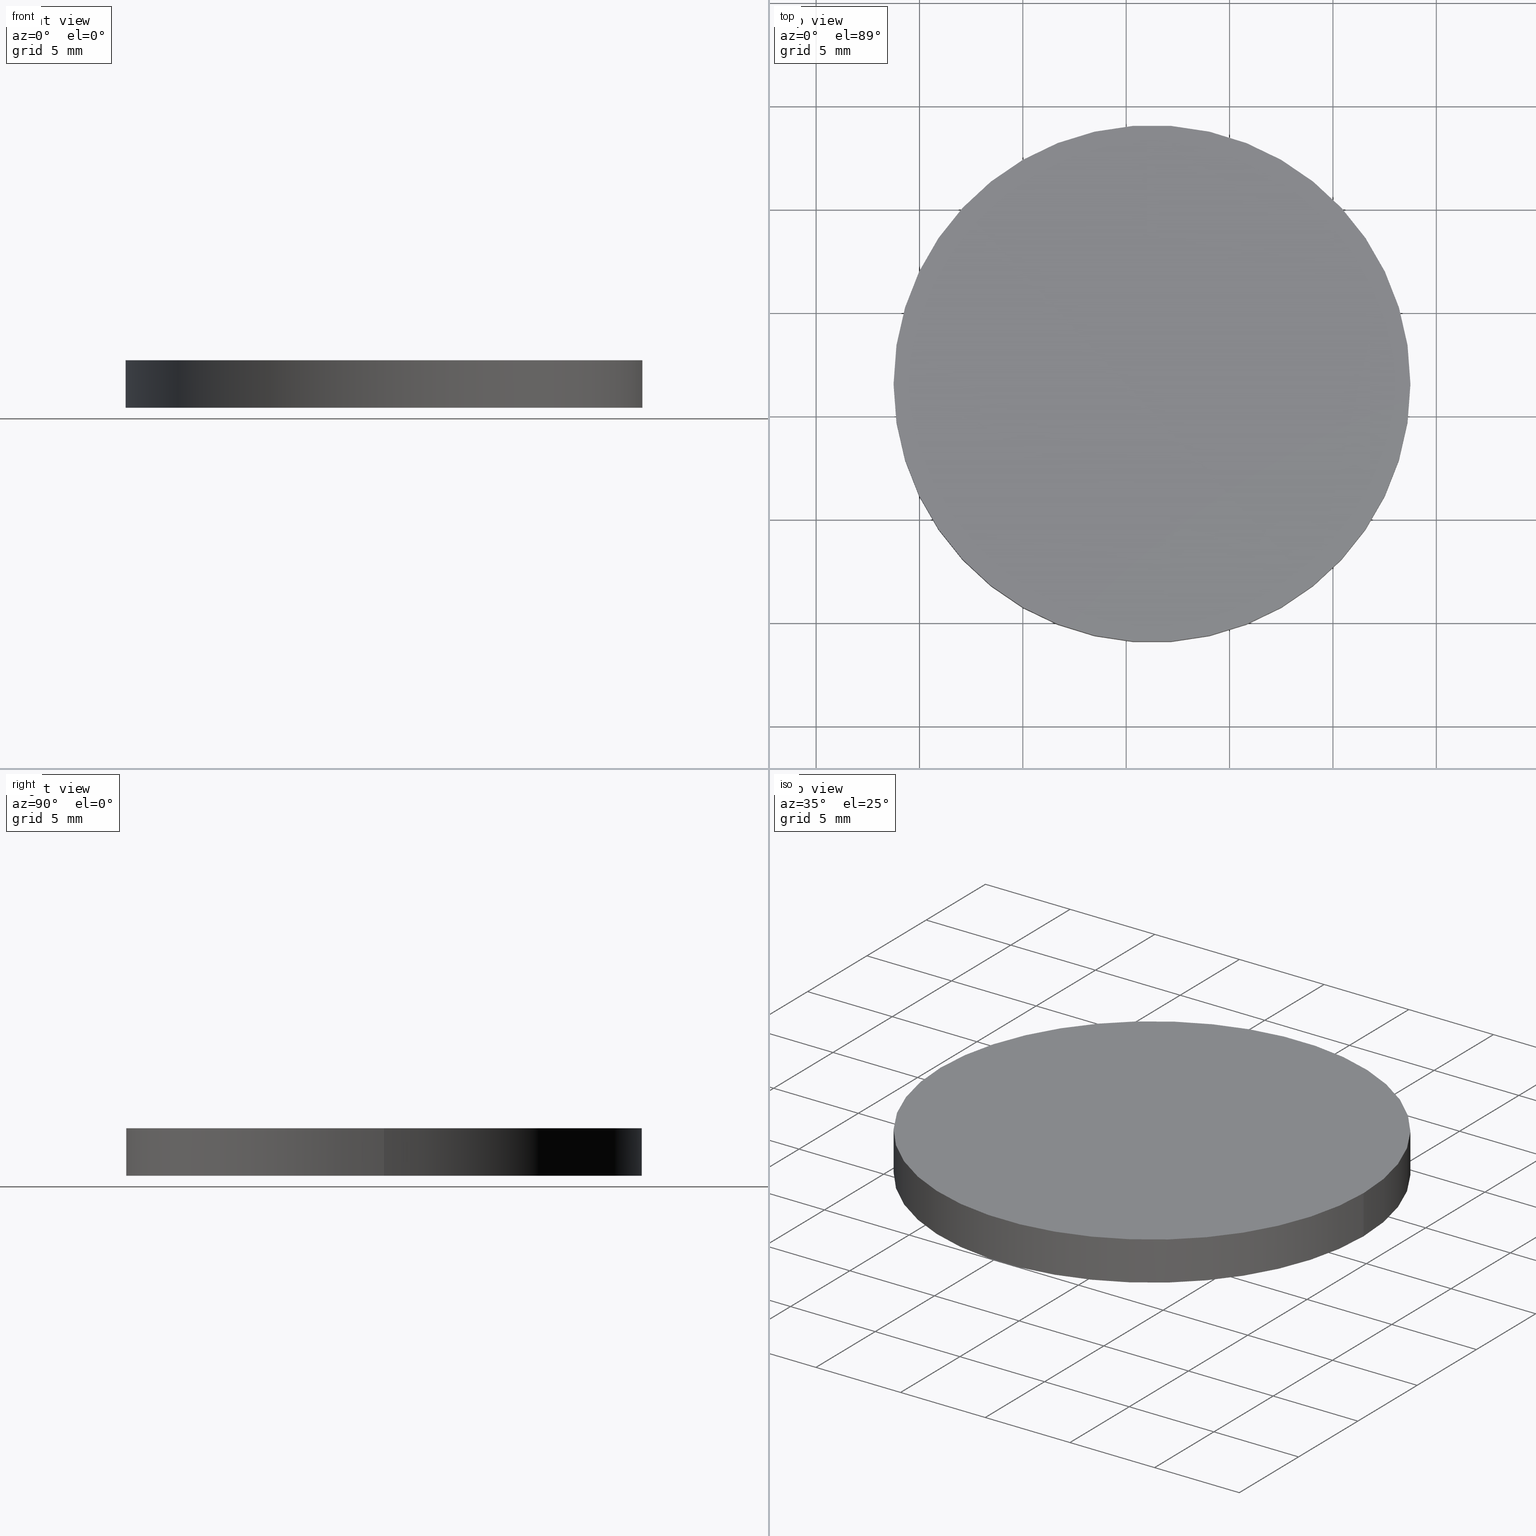
[diagram: canonical four-view strip — front | top / right | iso, engineering-drawing reading convention]
A machine part, canonical four-view strip (front | top / right | iso — engineering-drawing reading convention). The complete STEP part file that produces these views, byte-faithful:
ISO-10303-21;
HEADER;
FILE_DESCRIPTION (( 'STEP AP214' ),
    '1' );
FILE_NAME ('302516.STEP',
    '2019-08-13T05:58:29',
    ( '' ),
    ( '' ),
    'SwSTEP 2.0',
    'SolidWorks 2016',
    '' );
FILE_SCHEMA (( 'AUTOMOTIVE_DESIGN' ));
ENDSEC;

DATA;
#1 = CARTESIAN_POINT ( 'NONE',  ( 101.2479357758850800, 61.56324183452659300, 2.299999999999999800 ) ) ;
#2 = DIRECTION ( 'NONE',  ( 1.000000000000000000, 0.0000000000000000000, 0.0000000000000000000 ) ) ;
#3 = PRODUCT_DEFINITION ( 'δ֪', '', #61, #91 ) ;
#4 = AXIS2_PLACEMENT_3D ( 'NONE', #55, #115, #119 ) ;
#5 = CYLINDRICAL_SURFACE ( 'NONE', #131, 12.49999999999999600 ) ;
#6 = UNCERTAINTY_MEASURE_WITH_UNIT (LENGTH_MEASURE( 1.000000000000000100E-005 ), #24, 'distance_accuracy_value', 'NONE');
#7 = ORIENTED_EDGE ( 'NONE', *, *, #19, .T. ) ;
#8 = DIRECTION ( 'NONE',  ( 1.000000000000000000, 0.0000000000000000000, -0.0000000000000000000 ) ) ;
#9 =( LENGTH_UNIT ( ) NAMED_UNIT ( * ) SI_UNIT ( .MILLI., .METRE. ) );
#10 = VERTEX_POINT ( 'NONE', #11 ) ;
#11 = CARTESIAN_POINT ( 'NONE',  ( 113.7479357758850800, 61.56324183452659300, 2.299999999999999800 ) ) ;
#12 = FILL_AREA_STYLE ('',( #14 ) ) ;
#13 = CARTESIAN_POINT ( 'NONE',  ( 0.0000000000000000000, 0.0000000000000000000, 0.0000000000000000000 ) ) ;
#14 = FILL_AREA_STYLE_COLOUR ( '', #97 ) ;
#15 = AXIS2_PLACEMENT_3D ( 'NONE', #67, #85, #8 ) ;
#16 =( GEOMETRIC_REPRESENTATION_CONTEXT ( 3 ) GLOBAL_UNCERTAINTY_ASSIGNED_CONTEXT ( ( #44 ) ) GLOBAL_UNIT_ASSIGNED_CONTEXT ( ( #9, #37, #49 ) ) REPRESENTATION_CONTEXT ( 'NONE', 'WORKASPACE' ) );
#17 = CYLINDRICAL_SURFACE ( 'NONE', #134, 12.49999999999999600 ) ;
#18 = ORIENTED_EDGE ( 'NONE', *, *, #135, .F. ) ;
#19 = EDGE_CURVE ( 'NONE', #99, #124, #59, .T. ) ;
#20 = CARTESIAN_POINT ( 'NONE',  ( 101.2479357758850800, 61.56324183452659300, 2.299999999999999800 ) ) ;
#21 = EDGE_LOOP ( 'NONE', ( #35, #43, #130, #123 ) ) ;
#22 = DIRECTION ( 'NONE',  ( -0.0000000000000000000, -0.0000000000000000000, -1.000000000000000000 ) ) ;
#23 = APPLICATION_PROTOCOL_DEFINITION ( 'draft international standard', 'automotive_design', 1998, #27 ) ;
#24 =( LENGTH_UNIT ( ) NAMED_UNIT ( * ) SI_UNIT ( .MILLI., .METRE. ) );
#25 = ORIENTED_EDGE ( 'NONE', *, *, #116, .T. ) ;
#26 = VECTOR ( 'NONE', #38, 1000.000000000000000 ) ;
#27 = APPLICATION_CONTEXT ( 'automotive_design' ) ;
#28 = PRODUCT_RELATED_PRODUCT_CATEGORY ( 'part', '', ( #114 ) ) ;
#29 = SURFACE_STYLE_USAGE ( .BOTH. , #40 ) ;
#30 = AXIS2_PLACEMENT_3D ( 'NONE', #120, #89, #87 ) ;
#31 = ORIENTED_EDGE ( 'NONE', *, *, #42, .T. ) ;
#32 = FACE_OUTER_BOUND ( 'NONE', #112, .T. ) ;
#33 = ADVANCED_FACE ( 'NONE', ( #109 ), #17, .T. ) ;
#34 = DIRECTION ( 'NONE',  ( -1.000000000000000000, 0.0000000000000000000, 0.0000000000000000000 ) ) ;
#35 = ORIENTED_EDGE ( 'NONE', *, *, #42, .F. ) ;
#36 = SURFACE_STYLE_FILL_AREA ( #104 ) ;
#37 =( NAMED_UNIT ( * ) PLANE_ANGLE_UNIT ( ) SI_UNIT ( $, .RADIAN. ) );
#38 = DIRECTION ( 'NONE',  ( -0.0000000000000000000, -0.0000000000000000000, -1.000000000000000000 ) ) ;
#39 = APPLICATION_PROTOCOL_DEFINITION ( 'draft international standard', 'automotive_design', 1998, #106 ) ;
#40 = SURFACE_SIDE_STYLE ('',( #125 ) ) ;
#41 = PRODUCT_CONTEXT ( 'NONE', #106, 'mechanical' ) ;
#42 = EDGE_CURVE ( 'NONE', #10, #48, #81, .T. ) ;
#43 = ORIENTED_EDGE ( 'NONE', *, *, #135, .T. ) ;
#44 = UNCERTAINTY_MEASURE_WITH_UNIT (LENGTH_MEASURE( 1.000000000000000100E-005 ), #9, 'distance_accuracy_value', 'NONE');
#45 = COLOUR_RGB ( '',1.000000000000000000, 1.000000000000000000, 1.000000000000000000 ) ;
#46 = EDGE_LOOP ( 'NONE', ( #25, #31 ) ) ;
#47 = PRESENTATION_LAYER_ASSIGNMENT (  '', '', ( #60 ) ) ;
#48 = VERTEX_POINT ( 'NONE', #117 ) ;
#49 =( NAMED_UNIT ( * ) SI_UNIT ( $, .STERADIAN. ) SOLID_ANGLE_UNIT ( ) );
#50 = CARTESIAN_POINT ( 'NONE',  ( 88.74793577588509700, 61.56324183452659300, 2.299999999999999800 ) ) ;
#51 =( NAMED_UNIT ( * ) PLANE_ANGLE_UNIT ( ) SI_UNIT ( $, .RADIAN. ) );
#52 = UNCERTAINTY_MEASURE_WITH_UNIT (LENGTH_MEASURE( 1.000000000000000100E-005 ), #98, 'distance_accuracy_value', 'NONE');
#53 = PRESENTATION_STYLE_ASSIGNMENT (( #63 ) ) ;
#54 = LINE ( 'NONE', #50, #138 ) ;
#55 = CARTESIAN_POINT ( 'NONE',  ( 101.2479357758850800, 61.56324183452659300, 0.0000000000000000000 ) ) ;
#56 = DIRECTION ( 'NONE',  ( 0.0000000000000000000, 0.0000000000000000000, 1.000000000000000000 ) ) ;
#57 = PLANE ( 'NONE',  #15 ) ;
#58 = DIRECTION ( 'NONE',  ( 1.000000000000000000, 0.0000000000000000000, 0.0000000000000000000 ) ) ;
#59 = CIRCLE ( 'NONE', #68, 12.49999999999999600 ) ;
#60 = STYLED_ITEM ( 'NONE', ( #69 ), #96 ) ;
#61 = PRODUCT_DEFINITION_FORMATION_WITH_SPECIFIED_SOURCE ( '�κ�', '', #114, .NOT_KNOWN. ) ;
#62 = MECHANICAL_DESIGN_GEOMETRIC_PRESENTATION_REPRESENTATION (  '', ( #60 ), #80 ) ;
#63 = SURFACE_STYLE_USAGE ( .BOTH. , #65 ) ;
#64 = EDGE_CURVE ( 'NONE', #124, #99, #111, .T. ) ;
#65 = SURFACE_SIDE_STYLE ('',( #36 ) ) ;
#66 = CARTESIAN_POINT ( 'NONE',  ( 101.2479357758850800, 61.56324183452659300, 0.0000000000000000000 ) ) ;
#67 = CARTESIAN_POINT ( 'NONE',  ( 101.2479357758850800, 61.56324183452659300, 2.299999999999999800 ) ) ;
#68 = AXIS2_PLACEMENT_3D ( 'NONE', #66, #105, #58 ) ;
#69 = PRESENTATION_STYLE_ASSIGNMENT (( #29 ) ) ;
#70 = AXIS2_PLACEMENT_3D ( 'NONE', #102, #56, #86 ) ;
#71 = AXIS2_PLACEMENT_3D ( 'NONE', #13, #132, #2 ) ;
#72 = ADVANCED_FACE ( 'NONE', ( #32 ), #95, .F. ) ;
#73 = MECHANICAL_DESIGN_GEOMETRIC_PRESENTATION_REPRESENTATION (  '', ( #90 ), #16 ) ;
#74 = CARTESIAN_POINT ( 'NONE',  ( 88.74793577588509700, 61.56324183452659300, 0.0000000000000000000 ) ) ;
#75 = CIRCLE ( 'NONE', #30, 12.49999999999999600 ) ;
#76 =( NAMED_UNIT ( * ) PLANE_ANGLE_UNIT ( ) SI_UNIT ( $, .RADIAN. ) );
#77 =( NAMED_UNIT ( * ) SI_UNIT ( $, .STERADIAN. ) SOLID_ANGLE_UNIT ( ) );
#78 = AXIS2_PLACEMENT_3D ( 'NONE', #137, #129, #140 ) ;
#79 = SHAPE_DEFINITION_REPRESENTATION ( #136, #96 ) ;
#80 =( GEOMETRIC_REPRESENTATION_CONTEXT ( 3 ) GLOBAL_UNCERTAINTY_ASSIGNED_CONTEXT ( ( #52 ) ) GLOBAL_UNIT_ASSIGNED_CONTEXT ( ( #98, #51, #77 ) ) REPRESENTATION_CONTEXT ( 'NONE', 'WORKASPACE' ) );
#81 = CIRCLE ( 'NONE', #78, 12.49999999999999600 ) ;
#82 = EDGE_CURVE ( 'NONE', #48, #99, #54, .T. ) ;
#83 = CLOSED_SHELL ( 'NONE', ( #33, #113, #94, #72 ) ) ;
#84 = CARTESIAN_POINT ( 'NONE',  ( 113.7479357758850800, 61.56324183452659300, 2.299999999999999800 ) ) ;
#85 = DIRECTION ( 'NONE',  ( 0.0000000000000000000, 0.0000000000000000000, 1.000000000000000000 ) ) ;
#86 = DIRECTION ( 'NONE',  ( 1.000000000000000000, 0.0000000000000000000, 0.0000000000000000000 ) ) ;
#87 = DIRECTION ( 'NONE',  ( 1.000000000000000000, 0.0000000000000000000, 0.0000000000000000000 ) ) ;
#88 = MANIFOLD_SOLID_BREP ( '͹̨-����1', #83 ) ;
#89 = DIRECTION ( 'NONE',  ( 0.0000000000000000000, 0.0000000000000000000, 1.000000000000000000 ) ) ;
#90 = STYLED_ITEM ( 'NONE', ( #53 ), #88 ) ;
#91 = PRODUCT_DEFINITION_CONTEXT ( 'detailed design', #27, 'design' ) ;
#92 = EDGE_LOOP ( 'NONE', ( #18, #126, #93, #7 ) ) ;
#93 = ORIENTED_EDGE ( 'NONE', *, *, #82, .T. ) ;
#94 = ADVANCED_FACE ( 'NONE', ( #133 ), #57, .T. ) ;
#95 = PLANE ( 'NONE',  #4 ) ;
#96 = ADVANCED_BREP_SHAPE_REPRESENTATION ( '302516', ( #88, #71 ), #108 ) ;
#97 = COLOUR_RGB ( '',1.000000000000000000, 1.000000000000000000, 1.000000000000000000 ) ;
#98 =( LENGTH_UNIT ( ) NAMED_UNIT ( * ) SI_UNIT ( .MILLI., .METRE. ) );
#99 = VERTEX_POINT ( 'NONE', #74 ) ;
#100 = ORIENTED_EDGE ( 'NONE', *, *, #19, .F. ) ;
#101 = DIRECTION ( 'NONE',  ( -0.0000000000000000000, -0.0000000000000000000, -1.000000000000000000 ) ) ;
#102 = CARTESIAN_POINT ( 'NONE',  ( 101.2479357758850800, 61.56324183452659300, 0.0000000000000000000 ) ) ;
#103 = CARTESIAN_POINT ( 'NONE',  ( 113.7479357758850800, 61.56324183452659300, 0.0000000000000000000 ) ) ;
#104 = FILL_AREA_STYLE ('',( #118 ) ) ;
#105 = DIRECTION ( 'NONE',  ( 0.0000000000000000000, 0.0000000000000000000, 1.000000000000000000 ) ) ;
#106 = APPLICATION_CONTEXT ( 'automotive_design' ) ;
#107 =( NAMED_UNIT ( * ) SI_UNIT ( $, .STERADIAN. ) SOLID_ANGLE_UNIT ( ) );
#108 =( GEOMETRIC_REPRESENTATION_CONTEXT ( 3 ) GLOBAL_UNCERTAINTY_ASSIGNED_CONTEXT ( ( #6 ) ) GLOBAL_UNIT_ASSIGNED_CONTEXT ( ( #24, #76, #107 ) ) REPRESENTATION_CONTEXT ( 'NONE', 'WORKASPACE' ) );
#109 = FACE_OUTER_BOUND ( 'NONE', #21, .T. ) ;
#110 = LINE ( 'NONE', #84, #26 ) ;
#111 = CIRCLE ( 'NONE', #70, 12.49999999999999600 ) ;
#112 = EDGE_LOOP ( 'NONE', ( #100, #128 ) ) ;
#113 = ADVANCED_FACE ( 'NONE', ( #139 ), #5, .T. ) ;
#114 = PRODUCT ( '302516', '302516', '', ( #41 ) ) ;
#115 = DIRECTION ( 'NONE',  ( 0.0000000000000000000, 0.0000000000000000000, 1.000000000000000000 ) ) ;
#116 = EDGE_CURVE ( 'NONE', #48, #10, #75, .T. ) ;
#117 = CARTESIAN_POINT ( 'NONE',  ( 88.74793577588509700, 61.56324183452659300, 2.299999999999999800 ) ) ;
#118 = FILL_AREA_STYLE_COLOUR ( '', #45 ) ;
#119 = DIRECTION ( 'NONE',  ( 1.000000000000000000, 0.0000000000000000000, -0.0000000000000000000 ) ) ;
#120 = CARTESIAN_POINT ( 'NONE',  ( 101.2479357758850800, 61.56324183452659300, 2.299999999999999800 ) ) ;
#121 = DIRECTION ( 'NONE',  ( -1.000000000000000000, 0.0000000000000000000, 0.0000000000000000000 ) ) ;
#122 = PRESENTATION_LAYER_ASSIGNMENT (  '', '', ( #90 ) ) ;
#123 = ORIENTED_EDGE ( 'NONE', *, *, #82, .F. ) ;
#124 = VERTEX_POINT ( 'NONE', #103 ) ;
#125 = SURFACE_STYLE_FILL_AREA ( #12 ) ;
#126 = ORIENTED_EDGE ( 'NONE', *, *, #116, .F. ) ;
#127 = DIRECTION ( 'NONE',  ( -0.0000000000000000000, -0.0000000000000000000, -1.000000000000000000 ) ) ;
#128 = ORIENTED_EDGE ( 'NONE', *, *, #64, .F. ) ;
#129 = DIRECTION ( 'NONE',  ( 0.0000000000000000000, 0.0000000000000000000, 1.000000000000000000 ) ) ;
#130 = ORIENTED_EDGE ( 'NONE', *, *, #64, .T. ) ;
#131 = AXIS2_PLACEMENT_3D ( 'NONE', #20, #101, #34 ) ;
#132 = DIRECTION ( 'NONE',  ( 0.0000000000000000000, 0.0000000000000000000, 1.000000000000000000 ) ) ;
#133 = FACE_OUTER_BOUND ( 'NONE', #46, .T. ) ;
#134 = AXIS2_PLACEMENT_3D ( 'NONE', #1, #22, #121 ) ;
#135 = EDGE_CURVE ( 'NONE', #10, #124, #110, .T. ) ;
#136 = PRODUCT_DEFINITION_SHAPE ( 'NONE', 'NONE',  #3 ) ;
#137 = CARTESIAN_POINT ( 'NONE',  ( 101.2479357758850800, 61.56324183452659300, 2.299999999999999800 ) ) ;
#138 = VECTOR ( 'NONE', #127, 1000.000000000000000 ) ;
#139 = FACE_OUTER_BOUND ( 'NONE', #92, .T. ) ;
#140 = DIRECTION ( 'NONE',  ( 1.000000000000000000, 0.0000000000000000000, 0.0000000000000000000 ) ) ;
ENDSEC;
END-ISO-10303-21;
